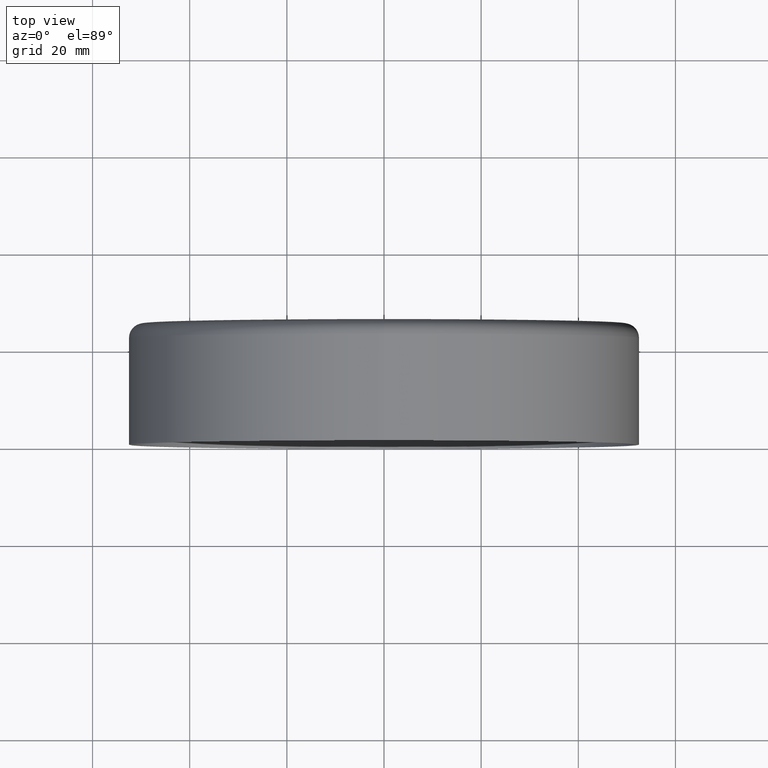
[diagram: clean part render]
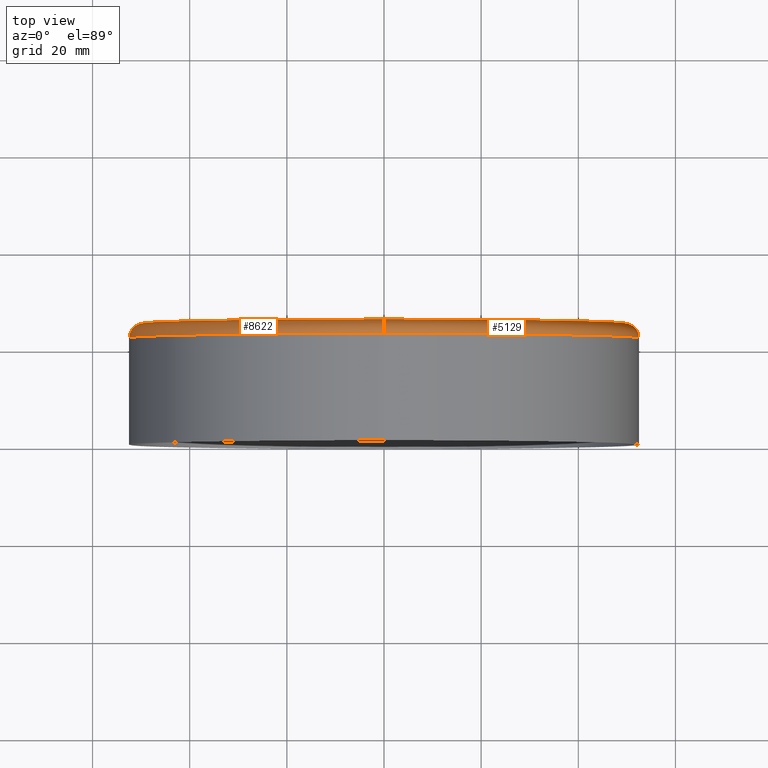
[diagram: same view with one multi-face feature highlighted, each face labeled with its STEP entity id]
A machine part, top view. The highlighted faces form ONE feature: a constant-radius fillet chain: 2 tangent blend faces with common blend radius 3 mm. The faces share edges in the B-rep.
Their STEP definitions:
[1] entity #5129 (Torus):
#362 = CARTESIAN_POINT ( 'NONE',  ( 0.000000000000000000, 22.00000000000000355, -52.50000000000000711 ) ) ;
#1221 = VERTEX_POINT ( 'NONE', #4705 ) ;
#2092 = CARTESIAN_POINT ( 'NONE',  ( 0.000000000000000000, 22.00000000000000355, 0.000000000000000000 ) ) ;
#2394 = DIRECTION ( 'NONE',  ( 0.000000000000000000, 0.000000000000000000, -1.000000000000000000 ) ) ;
#2417 = VERTEX_POINT ( 'NONE', #3681 ) ;
#2524 = FACE_OUTER_BOUND ( 'NONE', #6542, .T. ) ;
#2843 = DIRECTION ( 'NONE',  ( -1.000000000000000000, 0.000000000000000000, 0.000000000000000000 ) ) ;
#3284 = DIRECTION ( 'NONE',  ( 1.000000000000000000, 0.000000000000000000, -1.224646799147353207E-16 ) ) ;
#3548 = TOROIDAL_SURFACE ( 'NONE', #6380, 49.50000000000000000, 3.000000000000000888 ) ;
#3681 = CARTESIAN_POINT ( 'NONE',  ( 6.429395695523604744E-15, 22.00000000000000355, 52.50000000000000711 ) ) ;
#4705 = CARTESIAN_POINT ( 'NONE',  ( 0.000000000000000000, 25.00000000000000000, -49.50000000000000000 ) ) ;
#5040 = DIRECTION ( 'NONE',  ( 0.000000000000000000, 0.000000000000000000, 1.000000000000000000 ) ) ;
#5129 = ADVANCED_FACE ( 'NONE', ( #2524 ), #3548, .T. ) ;
#5249 = ORIENTED_EDGE ( 'NONE', *, *, #5605, .T. ) ;
#5369 = AXIS2_PLACEMENT_3D ( 'NONE', #11914, #13911, #8668 ) ;
#5605 = EDGE_CURVE ( 'NONE', #1221, #7660, #8670, .T. ) ;
#6076 = EDGE_CURVE ( 'NONE', #6550, #2417, #6986, .T. ) ;
#6323 = AXIS2_PLACEMENT_3D ( 'NONE', #9347, #2843, #5040 ) ;
#6380 = AXIS2_PLACEMENT_3D ( 'NONE', #2092, #6637, #13396 ) ;
#6534 = DIRECTION ( 'NONE',  ( -1.224646799147351975E-16, 0.000000000000000000, -1.000000000000000000 ) ) ;
#6542 = EDGE_LOOP ( 'NONE', ( #5249, #8960, #10024, #9164 ) ) ;
#6550 = VERTEX_POINT ( 'NONE', #362 ) ;
#6637 = DIRECTION ( 'NONE',  ( -0.000000000000000000, -1.000000000000000000, -0.000000000000000000 ) ) ;
#6986 = CIRCLE ( 'NONE', #10845, 52.50000000000000711 ) ;
#7660 = VERTEX_POINT ( 'NONE', #8461 ) ;
#8461 = CARTESIAN_POINT ( 'NONE',  ( 6.245698675651501233E-15, 25.00000000000000000, 49.50000000000000000 ) ) ;
#8668 = DIRECTION ( 'NONE',  ( 0.000000000000000000, 0.000000000000000000, -1.000000000000000000 ) ) ;
#8670 = CIRCLE ( 'NONE', #5369, 49.50000000000000000 ) ;
#8960 = ORIENTED_EDGE ( 'NONE', *, *, #13443, .T. ) ;
#9164 = ORIENTED_EDGE ( 'NONE', *, *, #9901, .F. ) ;
#9347 = CARTESIAN_POINT ( 'NONE',  ( 0.000000000000000000, 22.00000000000000355, -49.50000000000000000 ) ) ;
#9779 = CARTESIAN_POINT ( 'NONE',  ( 6.062001655779398511E-15, 22.00000000000000355, 49.50000000000000000 ) ) ;
#9901 = EDGE_CURVE ( 'NONE', #1221, #6550, #9929, .T. ) ;
#9929 = CIRCLE ( 'NONE', #6323, 3.000000000000002665 ) ;
#10024 = ORIENTED_EDGE ( 'NONE', *, *, #6076, .F. ) ;
#10359 = CIRCLE ( 'NONE', #13161, 3.000000000000002665 ) ;
#10845 = AXIS2_PLACEMENT_3D ( 'NONE', #12172, #13267, #2394 ) ;
#11914 = CARTESIAN_POINT ( 'NONE',  ( 0.000000000000000000, 25.00000000000000000, 0.000000000000000000 ) ) ;
#12172 = CARTESIAN_POINT ( 'NONE',  ( 0.000000000000000000, 22.00000000000000355, 0.000000000000000000 ) ) ;
#13161 = AXIS2_PLACEMENT_3D ( 'NONE', #9779, #3284, #6534 ) ;
#13267 = DIRECTION ( 'NONE',  ( -0.000000000000000000, -1.000000000000000000, -0.000000000000000000 ) ) ;
#13396 = DIRECTION ( 'NONE',  ( 0.000000000000000000, 0.000000000000000000, -1.000000000000000000 ) ) ;
#13443 = EDGE_CURVE ( 'NONE', #7660, #2417, #10359, .T. ) ;
#13911 = DIRECTION ( 'NONE',  ( -0.000000000000000000, -1.000000000000000000, -0.000000000000000000 ) ) ;
[2] entity #8622 (Torus):
#362 = CARTESIAN_POINT ( 'NONE',  ( 0.000000000000000000, 22.00000000000000355, -52.50000000000000711 ) ) ;
#380 = ORIENTED_EDGE ( 'NONE', *, *, #6600, .T. ) ;
#500 = CIRCLE ( 'NONE', #8928, 49.50000000000000000 ) ;
#1221 = VERTEX_POINT ( 'NONE', #4705 ) ;
#1678 = CARTESIAN_POINT ( 'NONE',  ( 0.000000000000000000, 22.00000000000000355, 0.000000000000000000 ) ) ;
#2417 = VERTEX_POINT ( 'NONE', #3681 ) ;
#2776 = DIRECTION ( 'NONE',  ( 0.000000000000000000, 0.000000000000000000, -1.000000000000000000 ) ) ;
#2843 = DIRECTION ( 'NONE',  ( -1.000000000000000000, 0.000000000000000000, 0.000000000000000000 ) ) ;
#3284 = DIRECTION ( 'NONE',  ( 1.000000000000000000, 0.000000000000000000, -1.224646799147353207E-16 ) ) ;
#3681 = CARTESIAN_POINT ( 'NONE',  ( 6.429395695523604744E-15, 22.00000000000000355, 52.50000000000000711 ) ) ;
#4705 = CARTESIAN_POINT ( 'NONE',  ( 0.000000000000000000, 25.00000000000000000, -49.50000000000000000 ) ) ;
#4781 = DIRECTION ( 'NONE',  ( -0.000000000000000000, -1.000000000000000000, -0.000000000000000000 ) ) ;
#5040 = DIRECTION ( 'NONE',  ( 0.000000000000000000, 0.000000000000000000, 1.000000000000000000 ) ) ;
#5551 = TOROIDAL_SURFACE ( 'NONE', #11965, 49.50000000000000000, 3.000000000000000888 ) ;
#6054 = CARTESIAN_POINT ( 'NONE',  ( 0.000000000000000000, 22.00000000000000355, 0.000000000000000000 ) ) ;
#6323 = AXIS2_PLACEMENT_3D ( 'NONE', #9347, #2843, #5040 ) ;
#6534 = DIRECTION ( 'NONE',  ( -1.224646799147351975E-16, 0.000000000000000000, -1.000000000000000000 ) ) ;
#6550 = VERTEX_POINT ( 'NONE', #362 ) ;
#6600 = EDGE_CURVE ( 'NONE', #7660, #1221, #500, .T. ) ;
#6907 = EDGE_CURVE ( 'NONE', #2417, #6550, #12409, .T. ) ;
#7136 = CARTESIAN_POINT ( 'NONE',  ( 0.000000000000000000, 25.00000000000000000, 0.000000000000000000 ) ) ;
#7660 = VERTEX_POINT ( 'NONE', #8461 ) ;
#8224 = DIRECTION ( 'NONE',  ( 0.000000000000000000, 0.000000000000000000, -1.000000000000000000 ) ) ;
#8461 = CARTESIAN_POINT ( 'NONE',  ( 6.245698675651501233E-15, 25.00000000000000000, 49.50000000000000000 ) ) ;
#8622 = ADVANCED_FACE ( 'NONE', ( #10667 ), #5551, .T. ) ;
#8928 = AXIS2_PLACEMENT_3D ( 'NONE', #7136, #4781, #8224 ) ;
#9309 = DIRECTION ( 'NONE',  ( -0.000000000000000000, -1.000000000000000000, -0.000000000000000000 ) ) ;
#9347 = CARTESIAN_POINT ( 'NONE',  ( 0.000000000000000000, 22.00000000000000355, -49.50000000000000000 ) ) ;
#9779 = CARTESIAN_POINT ( 'NONE',  ( 6.062001655779398511E-15, 22.00000000000000355, 49.50000000000000000 ) ) ;
#9901 = EDGE_CURVE ( 'NONE', #1221, #6550, #9929, .T. ) ;
#9929 = CIRCLE ( 'NONE', #6323, 3.000000000000002665 ) ;
#10127 = ORIENTED_EDGE ( 'NONE', *, *, #6907, .F. ) ;
#10359 = CIRCLE ( 'NONE', #13161, 3.000000000000002665 ) ;
#10657 = AXIS2_PLACEMENT_3D ( 'NONE', #1678, #12686, #2776 ) ;
#10667 = FACE_OUTER_BOUND ( 'NONE', #13970, .T. ) ;
#11927 = ORIENTED_EDGE ( 'NONE', *, *, #13443, .F. ) ;
#11965 = AXIS2_PLACEMENT_3D ( 'NONE', #6054, #9309, #12569 ) ;
#12409 = CIRCLE ( 'NONE', #10657, 52.50000000000000711 ) ;
#12569 = DIRECTION ( 'NONE',  ( 0.000000000000000000, 0.000000000000000000, -1.000000000000000000 ) ) ;
#12686 = DIRECTION ( 'NONE',  ( -0.000000000000000000, -1.000000000000000000, -0.000000000000000000 ) ) ;
#13161 = AXIS2_PLACEMENT_3D ( 'NONE', #9779, #3284, #6534 ) ;
#13177 = ORIENTED_EDGE ( 'NONE', *, *, #9901, .T. ) ;
#13443 = EDGE_CURVE ( 'NONE', #7660, #2417, #10359, .T. ) ;
#13970 = EDGE_LOOP ( 'NONE', ( #11927, #380, #13177, #10127 ) ) ;